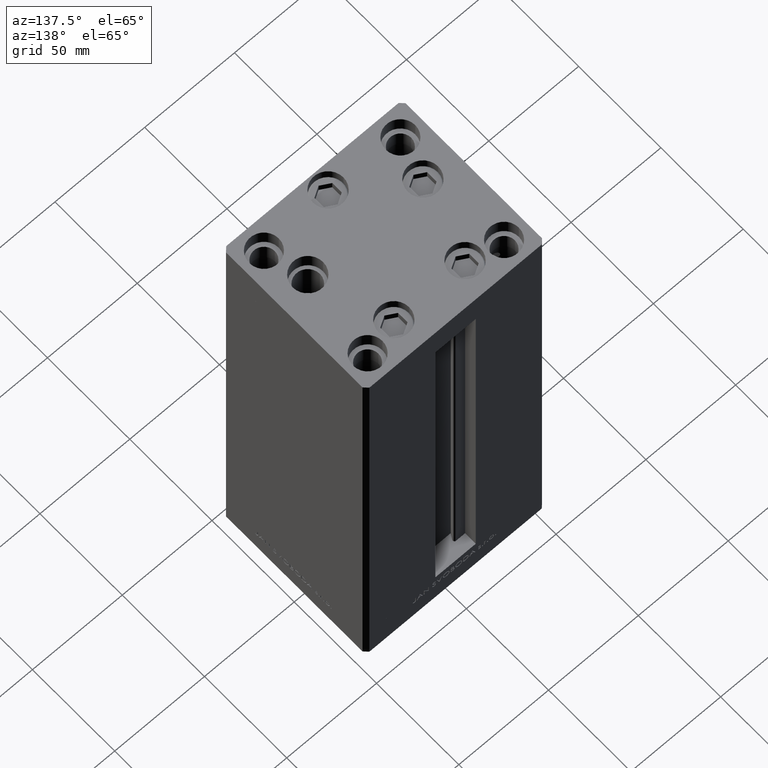
[diagram: clean part render]
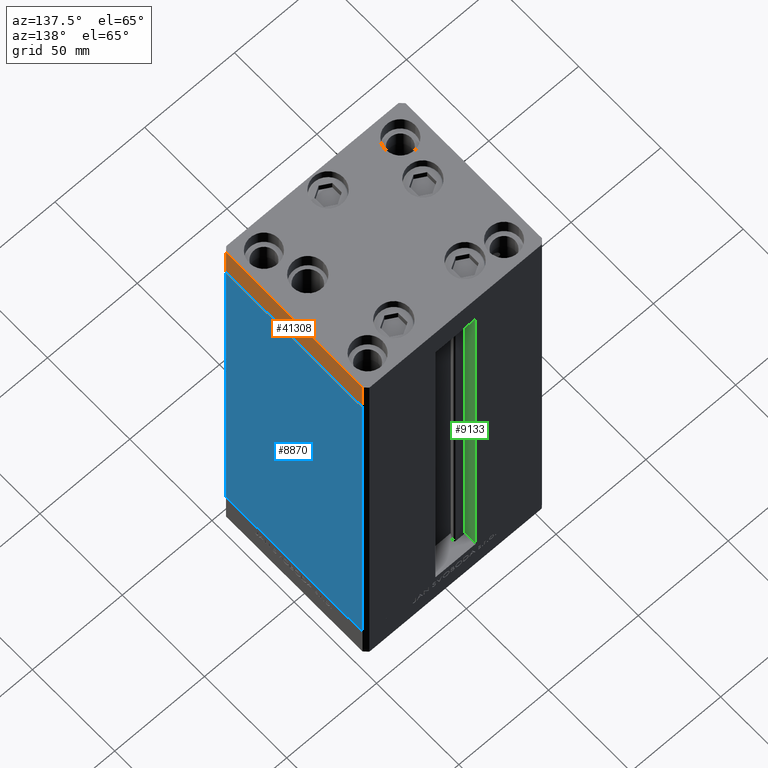
[diagram: same view with three faces highlighted in distinct colors, each labeled with its STEP entity id]
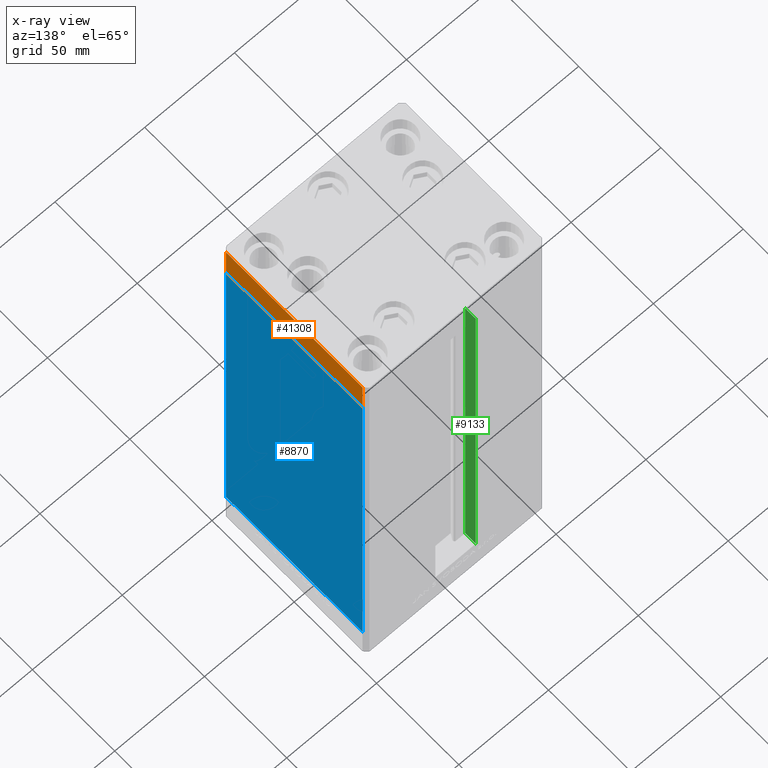
[diagram: x-ray of the same camera — body ghosted, the three highlighted faces saturated]
A machine part, auxiliary view with three faces highlighted in distinct colors.
The next image is the same camera in x-ray (body ghosted, the three faces saturated) — at least one of them is partly hidden behind the body in this view.
Their STEP definitions:

[orange] entity #41308 — the highlighted planar face has unit normal (1, 0, 0).
#335 = CARTESIAN_POINT ( 'NONE',  ( 50.00000000000000000, -41.49999999999999289, -19.00000000000000000 ) ) ;
#365 = DIRECTION ( 'NONE',  ( 0.000000000000000000, 0.000000000000000000, 1.000000000000000000 ) ) ;
#1856 = FACE_OUTER_BOUND ( 'NONE', #37739, .T. ) ;
#2163 = EDGE_CURVE ( 'NONE', #32503, #40480, #27211, .T. ) ;
#2268 = DIRECTION ( 'NONE',  ( -1.003213576468515193E-15, 1.000000000000000000, 0.000000000000000000 ) ) ;
#2520 = CARTESIAN_POINT ( 'NONE',  ( 50.00000000000000000, -41.49999999999999289, -19.00000000000000000 ) ) ;
#5116 = VECTOR ( 'NONE', #8718, 1000.000000000000000 ) ;
#5173 = LINE ( 'NONE', #20591, #5116 ) ;
#5400 = DIRECTION ( 'NONE',  ( 1.000000000000000000, 1.003213576468515193E-15, -0.000000000000000000 ) ) ;
#5899 = PLANE ( 'NONE',  #38491 ) ;
#6067 = LINE ( 'NONE', #2520, #6558 ) ;
#6558 = VECTOR ( 'NONE', #2268, 1000.000000000000000 ) ;
#8718 = DIRECTION ( 'NONE',  ( -1.003213576468515193E-15, 1.000000000000000000, 0.000000000000000000 ) ) ;
#8791 = CARTESIAN_POINT ( 'NONE',  ( 50.00000000000000000, -41.49999999999999289, -19.00000000000000000 ) ) ;
#10166 = EDGE_CURVE ( 'NONE', #37897, #40480, #5173, .T. ) ;
#10183 = DIRECTION ( 'NONE',  ( -1.003213576468515193E-15, 1.000000000000000000, 0.000000000000000000 ) ) ;
#10600 = CARTESIAN_POINT ( 'NONE',  ( 49.99999999999992184, 41.49999999999998579, 0.000000000000000000 ) ) ;
#12057 = EDGE_CURVE ( 'NONE', #22852, #37897, #15256, .T. ) ;
#12605 = CARTESIAN_POINT ( 'NONE',  ( 49.99999999999992184, 41.49999999999998579, -19.00000000000000000 ) ) ;
#15256 = LINE ( 'NONE', #335, #30950 ) ;
#17688 = ORIENTED_EDGE ( 'NONE', *, *, #2163, .T. ) ;
#20591 = CARTESIAN_POINT ( 'NONE',  ( 50.00000000000000000, -41.49999999999999289, 0.000000000000000000 ) ) ;
#22852 = VERTEX_POINT ( 'NONE', #8791 ) ;
#23626 = EDGE_CURVE ( 'NONE', #22852, #32503, #6067, .T. ) ;
#25664 = ORIENTED_EDGE ( 'NONE', *, *, #12057, .F. ) ;
#27211 = LINE ( 'NONE', #35048, #34773 ) ;
#29373 = CARTESIAN_POINT ( 'NONE',  ( 50.00000000000000000, -41.49999999999999289, 0.000000000000000000 ) ) ;
#30950 = VECTOR ( 'NONE', #30971, 1000.000000000000000 ) ;
#30971 = DIRECTION ( 'NONE',  ( 0.000000000000000000, 0.000000000000000000, 1.000000000000000000 ) ) ;
#32503 = VERTEX_POINT ( 'NONE', #12605 ) ;
#34773 = VECTOR ( 'NONE', #365, 1000.000000000000000 ) ;
#35048 = CARTESIAN_POINT ( 'NONE',  ( 49.99999999999992184, 41.49999999999998579, -19.00000000000000000 ) ) ;
#36598 = ORIENTED_EDGE ( 'NONE', *, *, #10166, .F. ) ;
#37739 = EDGE_LOOP ( 'NONE', ( #36598, #25664, #40453, #17688 ) ) ;
#37897 = VERTEX_POINT ( 'NONE', #29373 ) ;
#38491 = AXIS2_PLACEMENT_3D ( 'NONE', #40077, #5400, #10183 ) ;
#40077 = CARTESIAN_POINT ( 'NONE',  ( 50.00000000000000000, -41.49999999999999289, -19.00000000000000000 ) ) ;
#40453 = ORIENTED_EDGE ( 'NONE', *, *, #23626, .T. ) ;
#40480 = VERTEX_POINT ( 'NONE', #10600 ) ;
#41308 = ADVANCED_FACE ( 'NONE', ( #1856 ), #5899, .T. ) ;

[blue] entity #8870 — the highlighted planar face has unit normal (1, -0, 0).
#109 = VECTOR ( 'NONE', #32530, 1000.000000000000000 ) ;
#574 = EDGE_CURVE ( 'NONE', #4032, #18101, #35940, .T. ) ;
#3457 = LINE ( 'NONE', #50039, #37591 ) ;
#4032 = VERTEX_POINT ( 'NONE', #16177 ) ;
#5288 = PLANE ( 'NONE',  #39047 ) ;
#5600 = EDGE_CURVE ( 'NONE', #17370, #18101, #36823, .T. ) ;
#8661 = CARTESIAN_POINT ( 'NONE',  ( 50.00000000000001421, 41.49999999999999289, 218.5000000000000000 ) ) ;
#8870 = ADVANCED_FACE ( 'NONE', ( #32117 ), #5288, .T. ) ;
#11784 = VECTOR ( 'NONE', #18368, 1000.000000000000000 ) ;
#12395 = CARTESIAN_POINT ( 'NONE',  ( 49.99999999999998579, -41.49999999999999289, 218.5000000000000000 ) ) ;
#13120 = ORIENTED_EDGE ( 'NONE', *, *, #19876, .T. ) ;
#16177 = CARTESIAN_POINT ( 'NONE',  ( 49.99999999999998579, -41.49999999999999289, 218.5000000000000000 ) ) ;
#17062 = CARTESIAN_POINT ( 'NONE',  ( 50.00000000000001421, 41.49999999999999289, 0.000000000000000000 ) ) ;
#17370 = VERTEX_POINT ( 'NONE', #44129 ) ;
#17789 = EDGE_CURVE ( 'NONE', #35283, #17370, #3457, .T. ) ;
#18101 = VERTEX_POINT ( 'NONE', #48738 ) ;
#18368 = DIRECTION ( 'NONE',  ( -3.344045254895050973E-16, -1.000000000000000000, 0.000000000000000000 ) ) ;
#19876 = EDGE_CURVE ( 'NONE', #35283, #4032, #25986, .T. ) ;
#21456 = CARTESIAN_POINT ( 'NONE',  ( 50.00000000000001421, 41.49999999999999289, 218.5000000000000000 ) ) ;
#21771 = ORIENTED_EDGE ( 'NONE', *, *, #5600, .F. ) ;
#22025 = EDGE_LOOP ( 'NONE', ( #21771, #30426, #13120, #33043 ) ) ;
#23282 = DIRECTION ( 'NONE',  ( -0.000000000000000000, -0.000000000000000000, -1.000000000000000000 ) ) ;
#23350 = VECTOR ( 'NONE', #23282, 1000.000000000000000 ) ;
#25986 = LINE ( 'NONE', #49538, #11784 ) ;
#30052 = DIRECTION ( 'NONE',  ( -0.000000000000000000, -0.000000000000000000, -1.000000000000000000 ) ) ;
#30426 = ORIENTED_EDGE ( 'NONE', *, *, #17789, .F. ) ;
#32117 = FACE_OUTER_BOUND ( 'NONE', #22025, .T. ) ;
#32530 = DIRECTION ( 'NONE',  ( -3.344045254895050973E-16, -1.000000000000000000, 0.000000000000000000 ) ) ;
#33043 = ORIENTED_EDGE ( 'NONE', *, *, #574, .T. ) ;
#35283 = VERTEX_POINT ( 'NONE', #8661 ) ;
#35940 = LINE ( 'NONE', #12395, #23350 ) ;
#36171 = DIRECTION ( 'NONE',  ( 1.000000000000000000, -3.344045254895050480E-16, 0.000000000000000000 ) ) ;
#36823 = LINE ( 'NONE', #17062, #109 ) ;
#37591 = VECTOR ( 'NONE', #30052, 1000.000000000000000 ) ;
#39047 = AXIS2_PLACEMENT_3D ( 'NONE', #21456, #36171, #47569 ) ;
#44129 = CARTESIAN_POINT ( 'NONE',  ( 50.00000000000001421, 41.49999999999999289, 0.000000000000000000 ) ) ;
#47569 = DIRECTION ( 'NONE',  ( 3.344045254895050480E-16, 1.000000000000000000, 0.000000000000000000 ) ) ;
#48738 = CARTESIAN_POINT ( 'NONE',  ( 49.99999999999998579, -41.49999999999999289, 0.000000000000000000 ) ) ;
#49538 = CARTESIAN_POINT ( 'NONE',  ( 50.00000000000001421, 41.49999999999999289, 218.5000000000000000 ) ) ;
#50039 = CARTESIAN_POINT ( 'NONE',  ( 50.00000000000001421, 41.49999999999999289, 218.5000000000000000 ) ) ;

[green] entity #9133 — the highlighted planar face has unit normal (-1, 0, 0).
#801 = CARTESIAN_POINT ( 'NONE',  ( -11.24999999999999822, 43.50000000000000000, 0.000000000000000000 ) ) ;
#2680 = EDGE_CURVE ( 'NONE', #39608, #17709, #35489, .T. ) ;
#3450 = AXIS2_PLACEMENT_3D ( 'NONE', #48008, #17344, #16347 ) ;
#4143 = CARTESIAN_POINT ( 'NONE',  ( -11.24999999999999822, 36.99999999999999289, 218.5000000000000000 ) ) ;
#5967 = CARTESIAN_POINT ( 'NONE',  ( -11.24999999999999822, 43.50000000000000000, 0.000000000000000000 ) ) ;
#6353 = CARTESIAN_POINT ( 'NONE',  ( -11.24999999999999822, 0.000000000000000000, 218.5000000000000000 ) ) ;
#8689 = CARTESIAN_POINT ( 'NONE',  ( -11.24999999999999822, 36.99999999999999289, 0.000000000000000000 ) ) ;
#9133 = ADVANCED_FACE ( 'NONE', ( #13311 ), #9271, .F. ) ;
#9271 = PLANE ( 'NONE',  #3450 ) ;
#10872 = VECTOR ( 'NONE', #33660, 1000.000000000000000 ) ;
#13311 = FACE_OUTER_BOUND ( 'NONE', #14035, .T. ) ;
#13748 = EDGE_CURVE ( 'NONE', #45637, #17709, #44841, .T. ) ;
#14035 = EDGE_LOOP ( 'NONE', ( #21670, #23061, #46510, #19429 ) ) ;
#16347 = DIRECTION ( 'NONE',  ( 0.000000000000000000, 0.000000000000000000, 1.000000000000000000 ) ) ;
#16476 = DIRECTION ( 'NONE',  ( -0.000000000000000000, -0.000000000000000000, 1.000000000000000000 ) ) ;
#17344 = DIRECTION ( 'NONE',  ( -1.000000000000000000, 0.000000000000000000, 0.000000000000000000 ) ) ;
#17545 = VECTOR ( 'NONE', #33612, 1000.000000000000000 ) ;
#17709 = VERTEX_POINT ( 'NONE', #28563 ) ;
#19429 = ORIENTED_EDGE ( 'NONE', *, *, #13748, .F. ) ;
#21670 = ORIENTED_EDGE ( 'NONE', *, *, #47449, .F. ) ;
#23061 = ORIENTED_EDGE ( 'NONE', *, *, #37903, .F. ) ;
#25581 = DIRECTION ( 'NONE',  ( 0.000000000000000000, 1.000000000000000000, 0.000000000000000000 ) ) ;
#28563 = CARTESIAN_POINT ( 'NONE',  ( -11.24999999999999822, 43.50000000000000000, 218.5000000000000000 ) ) ;
#33612 = DIRECTION ( 'NONE',  ( -0.000000000000000000, -0.000000000000000000, 1.000000000000000000 ) ) ;
#33660 = DIRECTION ( 'NONE',  ( -0.000000000000000000, -1.000000000000000000, -0.000000000000000000 ) ) ;
#35489 = LINE ( 'NONE', #801, #44480 ) ;
#36915 = LINE ( 'NONE', #40463, #17545 ) ;
#37903 = EDGE_CURVE ( 'NONE', #39608, #49932, #49355, .T. ) ;
#39608 = VERTEX_POINT ( 'NONE', #5967 ) ;
#40463 = CARTESIAN_POINT ( 'NONE',  ( -11.24999999999999822, 36.99999999999999289, 0.000000000000000000 ) ) ;
#43974 = VECTOR ( 'NONE', #25581, 1000.000000000000000 ) ;
#44480 = VECTOR ( 'NONE', #16476, 1000.000000000000000 ) ;
#44841 = LINE ( 'NONE', #6353, #43974 ) ;
#45065 = CARTESIAN_POINT ( 'NONE',  ( -11.24999999999999822, 36.99999999999999289, 0.000000000000000000 ) ) ;
#45637 = VERTEX_POINT ( 'NONE', #4143 ) ;
#46510 = ORIENTED_EDGE ( 'NONE', *, *, #2680, .T. ) ;
#47449 = EDGE_CURVE ( 'NONE', #49932, #45637, #36915, .T. ) ;
#48008 = CARTESIAN_POINT ( 'NONE',  ( -11.24999999999999822, 36.99999999999999289, 0.000000000000000000 ) ) ;
#49355 = LINE ( 'NONE', #45065, #10872 ) ;
#49932 = VERTEX_POINT ( 'NONE', #8689 ) ;